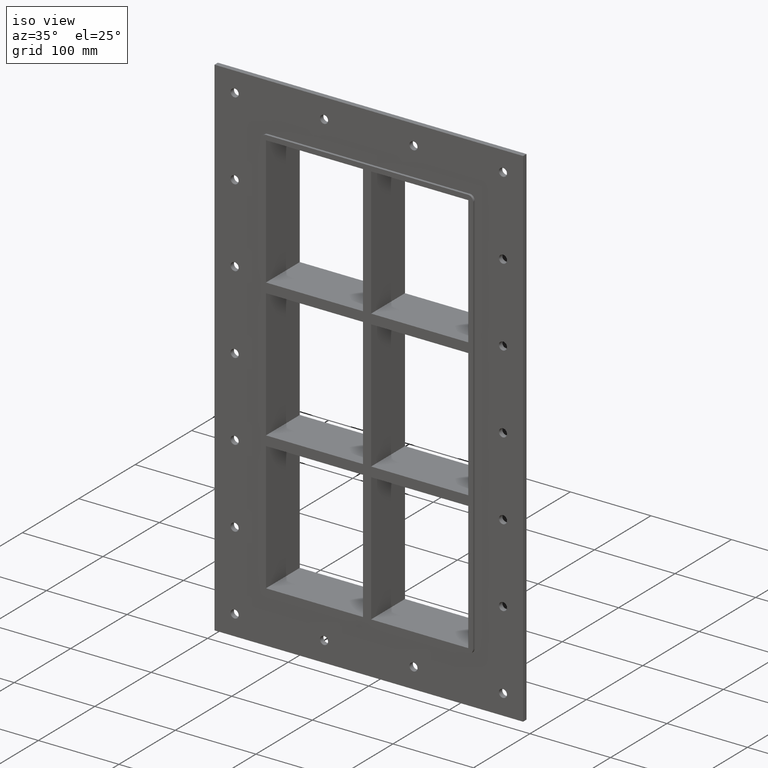
[diagram: clean part render]
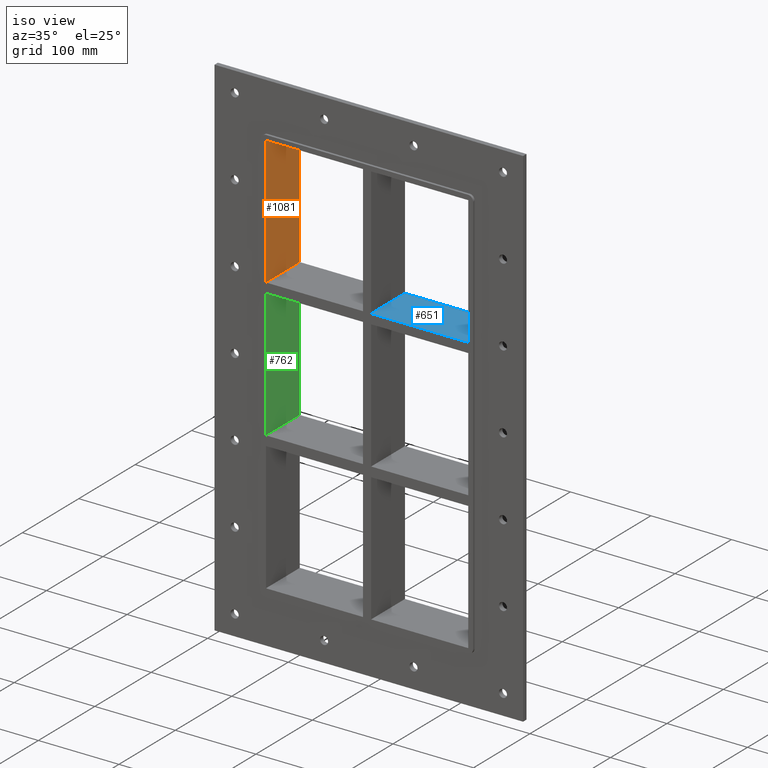
[diagram: same view with three faces highlighted in distinct colors, each labeled with its STEP entity id]
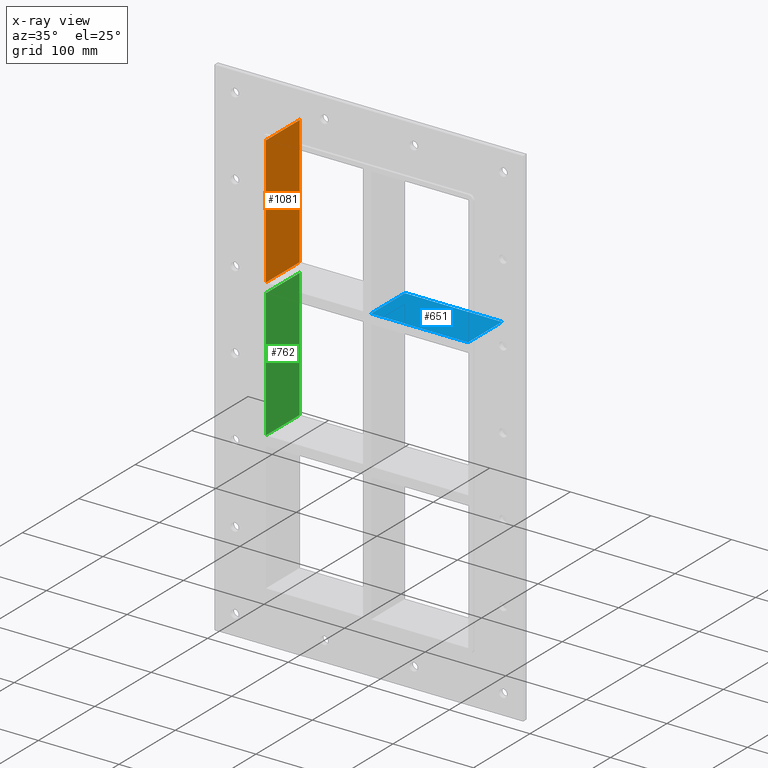
[diagram: x-ray of the same camera — body ghosted, the three highlighted faces saturated]
A machine part, iso view with three faces highlighted in distinct colors.
The next image is the same camera in x-ray (body ghosted, the three faces saturated) — at least one of them is partly hidden behind the body in this view.
Their STEP definitions:

[orange] entity #1081 — the highlighted planar face has unit normal (-1, 0, 0).
#667=CARTESIAN_POINT('',(-125.49999999999972,57.0,91.750000000000085));
#668=VERTEX_POINT('',#667);
#675=CARTESIAN_POINT('',(-125.49999999999972,-3.0,91.750000000000085));
#676=VERTEX_POINT('',#675);
#677=CARTESIAN_POINT('',(-125.5,-3.0,91.750000000000085));
#678=DIRECTION('',(0.0,1.0,0.0));
#679=VECTOR('',#678,60.000000000000007);
#680=LINE('',#677,#679);
#681=EDGE_CURVE('',#676,#668,#680,.T.);
#1051=CARTESIAN_POINT('',(-125.5,0.0,-251.25000000000003));
#1052=DIRECTION('',(-1.0,0.0,0.0));
#1053=DIRECTION('',(0.0,0.0,1.0));
#1054=AXIS2_PLACEMENT_3D('',#1051,#1052,#1053);
#1055=PLANE('',#1054);
#1056=ORIENTED_EDGE('',*,*,#681,.T.);
#1057=CARTESIAN_POINT('',(-125.50000000000003,57.0,251.25000000000003));
#1058=VERTEX_POINT('',#1057);
#1059=CARTESIAN_POINT('',(-125.5,57.0,251.25000000000006));
#1060=DIRECTION('',(0.0,0.0,-1.0));
#1061=VECTOR('',#1060,159.49999999999994);
#1062=LINE('',#1059,#1061);
#1063=EDGE_CURVE('',#1058,#668,#1062,.T.);
#1064=ORIENTED_EDGE('',*,*,#1063,.F.);
#1065=CARTESIAN_POINT('',(-125.50000000000003,-3.0,251.25000000000003));
#1066=VERTEX_POINT('',#1065);
#1067=CARTESIAN_POINT('',(-125.5,-3.0,251.25000000000003));
#1068=DIRECTION('',(0.0,1.0,0.0));
#1069=VECTOR('',#1068,60.0);
#1070=LINE('',#1067,#1069);
#1071=EDGE_CURVE('',#1066,#1058,#1070,.T.);
#1072=ORIENTED_EDGE('',*,*,#1071,.F.);
#1073=CARTESIAN_POINT('',(-125.5,-3.0,91.750000000000099));
#1074=DIRECTION('',(0.0,0.0,1.0));
#1075=VECTOR('',#1074,159.49999999999994);
#1076=LINE('',#1073,#1075);
#1077=EDGE_CURVE('',#676,#1066,#1076,.T.);
#1078=ORIENTED_EDGE('',*,*,#1077,.F.);
#1079=EDGE_LOOP('',(#1056,#1064,#1072,#1078));
#1080=FACE_OUTER_BOUND('',#1079,.T.);
#1081=ADVANCED_FACE('',(#1080),#1055,.F.);

[blue] entity #651 — the highlighted planar face has unit normal (0, 0, 1).
#612=CARTESIAN_POINT('',(-125.49999999999972,-3.0,91.750000000000085));
#613=DIRECTION('',(0.0,0.0,1.0));
#614=DIRECTION('',(1.0,0.0,0.0));
#615=AXIS2_PLACEMENT_3D('',#612,#613,#614);
#616=PLANE('',#615);
#617=CARTESIAN_POINT('',(5.0,-3.0,91.750000000000085));
#618=VERTEX_POINT('',#617);
#619=CARTESIAN_POINT('',(5.0,57.0,91.750000000000085));
#620=VERTEX_POINT('',#619);
#621=CARTESIAN_POINT('',(5.0,-3.0,91.750000000000085));
#622=DIRECTION('',(0.0,1.0,0.0));
#623=VECTOR('',#622,60.0);
#624=LINE('',#621,#623);
#625=EDGE_CURVE('',#618,#620,#624,.T.);
#626=ORIENTED_EDGE('',*,*,#625,.F.);
#627=CARTESIAN_POINT('',(125.4999999999999,-3.0,91.750000000000085));
#628=VERTEX_POINT('',#627);
#629=CARTESIAN_POINT('',(5.0,-3.0,91.750000000000085));
#630=DIRECTION('',(1.0,0.0,0.0));
#631=VECTOR('',#630,120.49999999999991);
#632=LINE('',#629,#631);
#633=EDGE_CURVE('',#618,#628,#632,.T.);
#634=ORIENTED_EDGE('',*,*,#633,.T.);
#635=CARTESIAN_POINT('',(125.4999999999999,57.0,91.750000000000085));
#636=VERTEX_POINT('',#635);
#637=CARTESIAN_POINT('',(125.5,57.000000000000007,91.750000000000085));
#638=DIRECTION('',(0.0,-1.0,0.0));
#639=VECTOR('',#638,60.000000000000007);
#640=LINE('',#637,#639);
#641=EDGE_CURVE('',#636,#628,#640,.T.);
#642=ORIENTED_EDGE('',*,*,#641,.F.);
#643=CARTESIAN_POINT('',(5.0,57.0,91.750000000000085));
#644=DIRECTION('',(1.0,0.0,0.0));
#645=VECTOR('',#644,120.49999999999991);
#646=LINE('',#643,#645);
#647=EDGE_CURVE('',#620,#636,#646,.T.);
#648=ORIENTED_EDGE('',*,*,#647,.F.);
#649=EDGE_LOOP('',(#626,#634,#642,#648));
#650=FACE_OUTER_BOUND('',#649,.T.);
#651=ADVANCED_FACE('',(#650),#616,.T.);

[green] entity #762 — the highlighted planar face has unit normal (-1, 0, 0).
#707=CARTESIAN_POINT('',(-125.49999999999972,-3.0,79.749999999990536));
#708=VERTEX_POINT('',#707);
#715=CARTESIAN_POINT('',(-125.49999999999972,57.0,79.749999999990536));
#716=VERTEX_POINT('',#715);
#717=CARTESIAN_POINT('',(-125.5,57.000000000000007,79.749999999990536));
#718=DIRECTION('',(0.0,-1.0,0.0));
#719=VECTOR('',#718,60.000000000000007);
#720=LINE('',#717,#719);
#721=EDGE_CURVE('',#716,#708,#720,.T.);
#732=CARTESIAN_POINT('',(-125.5,0.0,-251.25000000000003));
#733=DIRECTION('',(-1.0,0.0,0.0));
#734=DIRECTION('',(0.0,0.0,1.0));
#735=AXIS2_PLACEMENT_3D('',#732,#733,#734);
#736=PLANE('',#735);
#737=ORIENTED_EDGE('',*,*,#721,.T.);
#738=CARTESIAN_POINT('',(-125.49999999999972,-3.0,-79.749999999999943));
#739=VERTEX_POINT('',#738);
#740=CARTESIAN_POINT('',(-125.5,-3.0,-79.749999999999943));
#741=DIRECTION('',(0.0,0.0,1.0));
#742=VECTOR('',#741,159.49999999999051);
#743=LINE('',#740,#742);
#744=EDGE_CURVE('',#739,#708,#743,.T.);
#745=ORIENTED_EDGE('',*,*,#744,.F.);
#746=CARTESIAN_POINT('',(-125.49999999999972,57.0,-79.749999999999943));
#747=VERTEX_POINT('',#746);
#748=CARTESIAN_POINT('',(-125.5,-3.0,-79.749999999999929));
#749=DIRECTION('',(0.0,1.0,0.0));
#750=VECTOR('',#749,60.000000000000007);
#751=LINE('',#748,#750);
#752=EDGE_CURVE('',#739,#747,#751,.T.);
#753=ORIENTED_EDGE('',*,*,#752,.T.);
#754=CARTESIAN_POINT('',(-125.5,57.0,79.74999999999055));
#755=DIRECTION('',(0.0,0.0,-1.0));
#756=VECTOR('',#755,159.49999999999051);
#757=LINE('',#754,#756);
#758=EDGE_CURVE('',#716,#747,#757,.T.);
#759=ORIENTED_EDGE('',*,*,#758,.F.);
#760=EDGE_LOOP('',(#737,#745,#753,#759));
#761=FACE_OUTER_BOUND('',#760,.T.);
#762=ADVANCED_FACE('',(#761),#736,.F.);